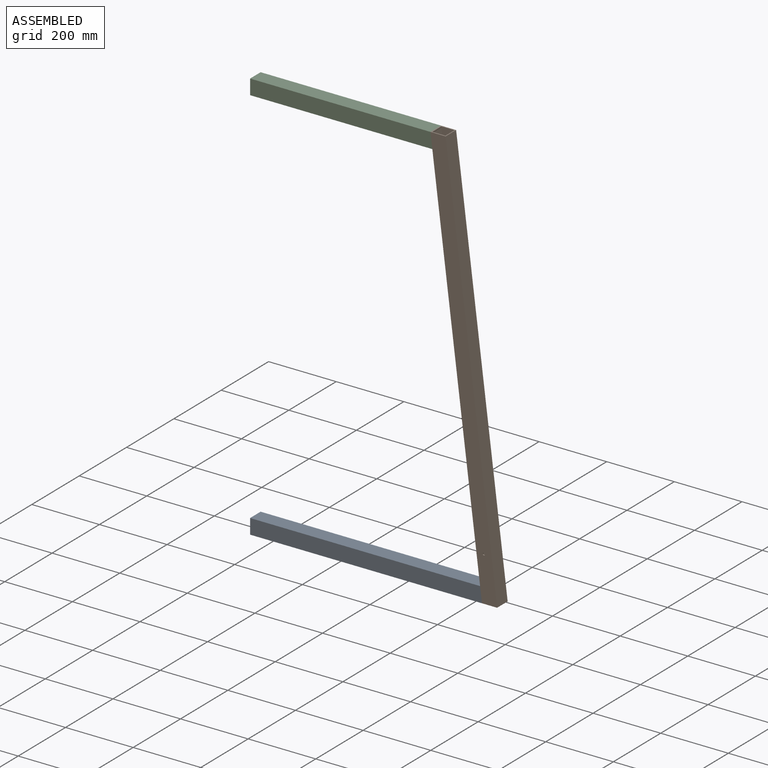
[diagram: assembled view]
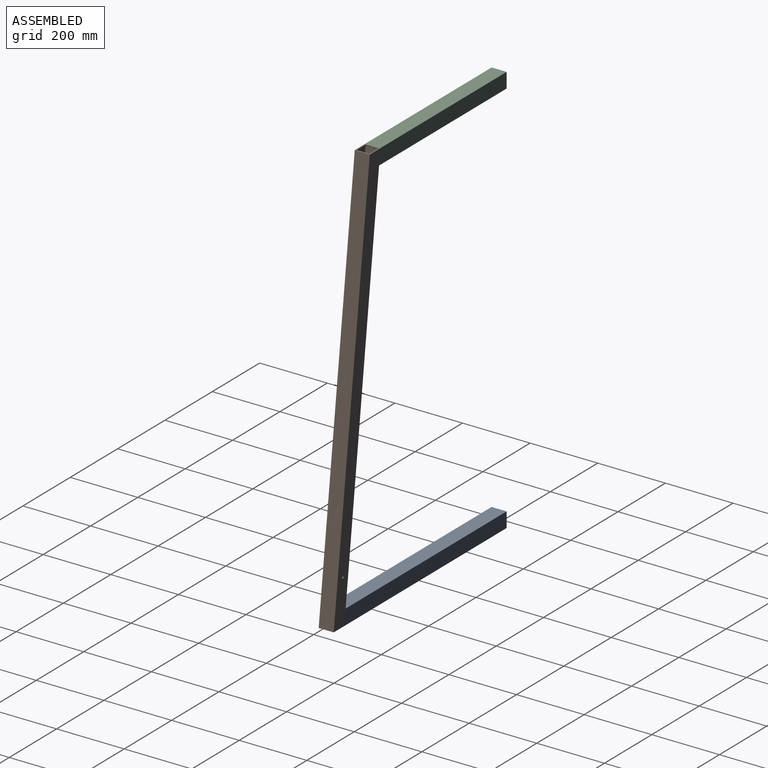
[diagram: assembled view, second angle]
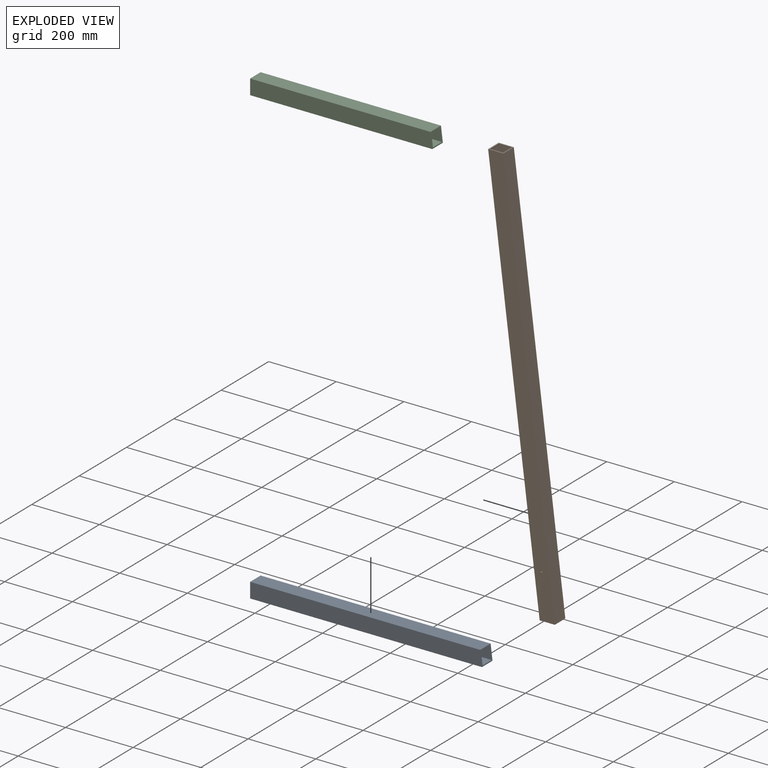
[diagram: exploded view]
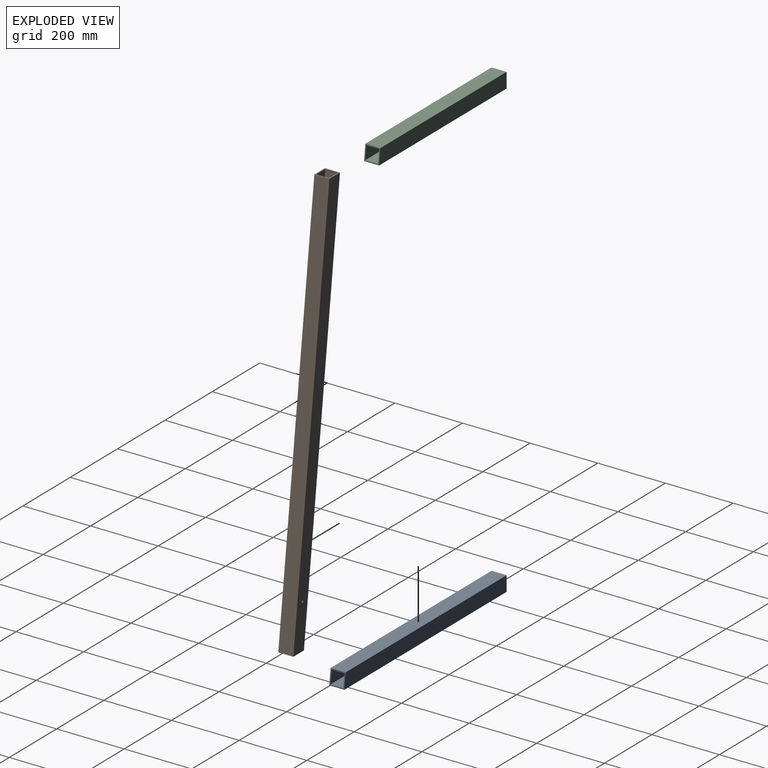
[diagram: exploded view, second angle]
ASSEMBLY  parts=3 mates=6
PART A: 10 faces, bbox 685.8x44.5x44.5 mm
  f0: plane 44.45x44.45mm, normal (-1,0,0), area 524.2mm2, adj f1,f3,f4,f5,f6,f7,f8,f9
  f1: plane 680.24x44.45mm, normal (0,0,-1), area 30236.8mm2, adj f0,f2,f4,f5
  f2: plane 44.45x44.45mm, normal (0.99,0,-0.12), area 528.3mm2, adj f1,f3,f4,f5,f6,f7,f8,f9
  f3: plane 685.8x44.45mm, normal (0,0,1), area 30483.8mm2, adj f0,f2,f4,f5
  f4: plane 685.8x44.45mm, normal (0,-1,0), area 30360.3mm2, adj f0,f1,f2,f3
  f5: plane 685.8x44.45mm, normal (0,1,0), area 30360.3mm2, adj f0,f1,f2,f3
  f6: plane 685.4x38.1mm, normal (0,1,0), area 26023.1mm2, adj f0,f2,f7,f9
  f7: plane 685.4x38.1mm, normal (0,0,-1), area 26113.9mm2, adj f0,f2,f6,f8
  f8: plane 685.4x38.1mm, normal (0,-1,0), area 26023.1mm2, adj f0,f2,f7,f9
  f9: plane 680.64x38.1mm, normal (0,0,1), area 25932.4mm2, adj f0,f2,f6,f8
PART B: 14 faces, bbox 1234.2x44.5x44.5 mm
  f0: plane 44.45x44.45mm, normal (-0.99,0,0.12), area 528.3mm2, adj f2,f3,f4,f5,f8,f9,f10,f11
  f1: plane 44.45x44.45mm, normal (0.99,0,-0.12), area 528.3mm2, adj f2,f3,f4,f5,f6,f7,f8,f9
  f2: plane 1228.69x44.45mm, normal (0,0,-1), area 54615.2mm2, adj f0,f1,f4,f5
  f3: plane 1228.69x44.45mm, normal (0,0,1), area 54615.2mm2, adj f0,f1,f4,f5
  f4: plane 1234.25x44.45mm, normal (0,-1,0), area 54579mm2, adj f0,f1,f2,f3,f13
  f5: plane 1234.25x44.45mm, normal (0,1,0), area 54579mm2, adj f0,f1,f2,f3,f12
  f6: plane 1225.49x38.1mm, normal (0,0,1), area 46691.1mm2, adj f1,f8,f9,f11
  f7: plane 1225.49x38.1mm, normal (0,0,-1), area 46691.1mm2, adj f1,f8,f9,f10
  f8: plane 1233.4x38.49mm, normal (0,1,0), area 46776.8mm2, adj f0,f1,f6,f7,f10,f11,f13
  f9: plane 1233.4x38.49mm, normal (0,-1,0), area 46776.8mm2, adj f0,f1,f6,f7,f10,f11,f12
  f10: plane 38.1x3.15mm, normal (-0.12,0,-0.99), area 121mm2, adj f0,f7,f8,f9
  f11: plane 38.1x3.15mm, normal (0.12,0,0.99), area 121mm2, adj f0,f6,f8,f9
  f12: cylinder r=3.4mm len=6.79mm, axis (0,-1,0), area 67.8mm2, adj f5,f9
  f13: cylinder r=3.4mm len=6.79mm, axis (0,-1,0), area 67.8mm2, adj f4,f8
PART C: 10 faces, bbox 539x44.5x44.5 mm
  f0: plane 44.45x44.45mm, normal (-1,0,0), area 524.2mm2, adj f1,f3,f4,f5,f6,f7,f8,f9
  f1: plane 538.96x44.45mm, normal (0,0,-1), area 23956.6mm2, adj f0,f2,f4,f5
  f2: plane 44.45x44.45mm, normal (0.99,0,0.12), area 528.3mm2, adj f1,f3,f4,f5,f6,f7,f8,f9
  f3: plane 533.4x44.45mm, normal (0,0,1), area 23709.6mm2, adj f0,f2,f4,f5
  f4: plane 538.96x44.45mm, normal (0,-1,0), area 23833.1mm2, adj f0,f1,f2,f3
  f5: plane 538.96x44.45mm, normal (0,1,0), area 23833.1mm2, adj f0,f1,f2,f3
  f6: plane 533.8x38.1mm, normal (0,0,-1), area 20337.7mm2, adj f0,f2,f7,f9
  f7: plane 538.56x38.1mm, normal (0,-1,0), area 20428.4mm2, adj f0,f2,f6,f8
  f8: plane 538.56x38.1mm, normal (0,0,1), area 20519.1mm2, adj f0,f2,f7,f9
  f9: plane 538.56x38.1mm, normal (0,1,0), area 20428.4mm2, adj f0,f2,f6,f8
PLACE A rot(axis=(1,0,0),180deg) t=(-31.43,-775.53,-489.36)mm fixed
PLACE B rot(axis=(0,1,0),82.9deg) t=(546.77,-731.08,685.39)mm
PLACE C t=(-31.43,-731.08,640.94)mm
MATE planar B.f4 <-> A.f5  axis (0,-1,0) through (600.53,-775.53,76.11)mm
MATE planar A.f2 <-> B.f2  axis (0.99,0,0.12) through (651.6,-753.3,-511.59)mm
MATE planar C.f2 <-> B.f2  axis (0.99,0,0.12) through (504.75,-753.3,663.16)mm
MATE planar C.f3 <-> B.f0  axis (0,0,1) through (235.27,-753.3,685.39)mm
MATE planar B.f1 <-> A.f3  axis (0,0,-1) through (676.77,-753.3,-533.81)mm
MATE planar C.f3 <-> B.f0  axis (0,0,1) through (235.27,-753.3,685.39)mm
